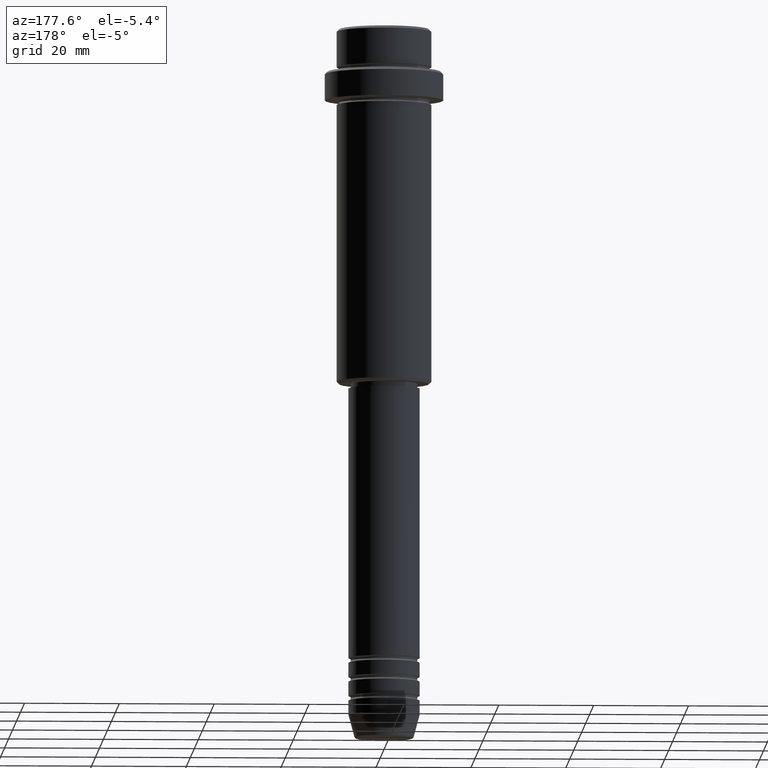
[diagram: clean part render]
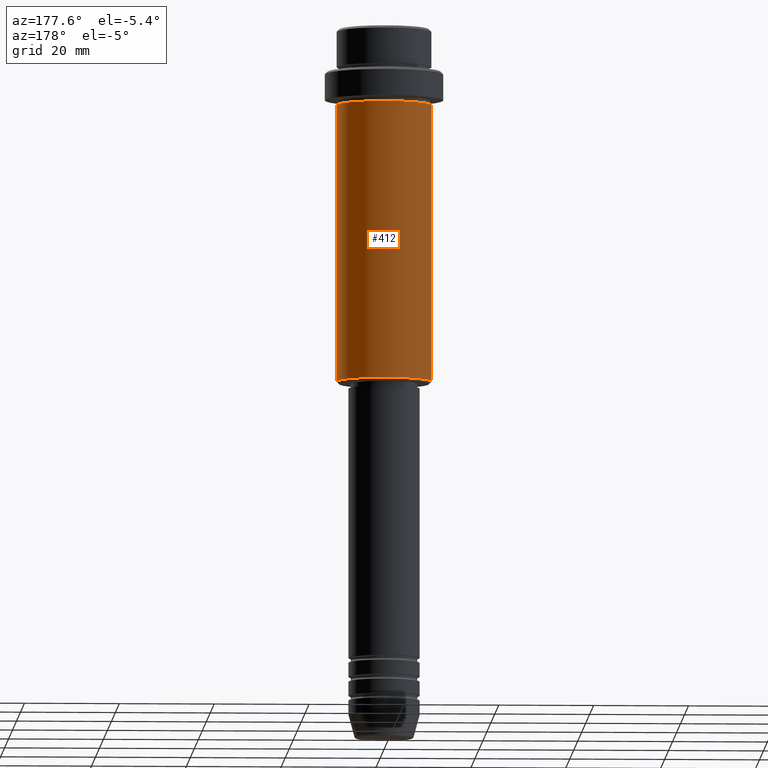
[diagram: same view with one face highlighted and labeled with its STEP entity id]
A machine part, auxiliary view. The second image highlights one B-rep face of the part: STEP entity #412.
In plain terms, the highlighted cylindrical surface (partial cylindrical patch) has radius 10 mm, axis along (-0, -0, 1).
Its self-contained STEP definition (entity closure, byte-faithful):
#4 = CYLINDRICAL_SURFACE ( 'NONE', #555, 10.00000000000000000 ) ;
#11 = LINE ( 'NONE', #1199, #1359 ) ;
#24 = CARTESIAN_POINT ( 'NONE',  ( 0.000000000000000000, 0.000000000000000000, -16.00000000000000000 ) ) ;
#50 = CIRCLE ( 'NONE', #739, 10.00000000000000000 ) ;
#93 = DIRECTION ( 'NONE',  ( -0.000000000000000000, -0.000000000000000000, 1.000000000000000000 ) ) ;
#102 = VECTOR ( 'NONE', #158, 1000.000000000000000 ) ;
#105 = EDGE_LOOP ( 'NONE', ( #845, #126, #644, #1139 ) ) ;
#123 = CIRCLE ( 'NONE', #171, 10.00000000000000000 ) ;
#126 = ORIENTED_EDGE ( 'NONE', *, *, #1086, .T. ) ;
#128 = EDGE_CURVE ( 'NONE', #386, #1214, #50, .T. ) ;
#158 = DIRECTION ( 'NONE',  ( -0.000000000000000000, -0.000000000000000000, 1.000000000000000000 ) ) ;
#171 = AXIS2_PLACEMENT_3D ( 'NONE', #525, #308, #313 ) ;
#211 = CARTESIAN_POINT ( 'NONE',  ( 10.00000000000000000, 0.000000000000000000, -74.50000000000001421 ) ) ;
#227 = CARTESIAN_POINT ( 'NONE',  ( 0.000000000000000000, 0.000000000000000000, 0.000000000000000000 ) ) ;
#267 = LINE ( 'NONE', #1141, #102 ) ;
#295 = CARTESIAN_POINT ( 'NONE',  ( -10.00000000000000000, 1.224646799147353256E-15, -16.00000000000000000 ) ) ;
#308 = DIRECTION ( 'NONE',  ( -0.000000000000000000, -0.000000000000000000, 1.000000000000000000 ) ) ;
#313 = DIRECTION ( 'NONE',  ( -1.000000000000000000, 0.000000000000000000, 0.000000000000000000 ) ) ;
#328 = EDGE_CURVE ( 'NONE', #1255, #386, #11, .T. ) ;
#346 = DIRECTION ( 'NONE',  ( -0.000000000000000000, -0.000000000000000000, 1.000000000000000000 ) ) ;
#386 = VERTEX_POINT ( 'NONE', #1216 ) ;
#412 = ADVANCED_FACE ( 'NONE', ( #646 ), #4, .T. ) ;
#509 = VERTEX_POINT ( 'NONE', #681 ) ;
#525 = CARTESIAN_POINT ( 'NONE',  ( 0.000000000000000000, 0.000000000000000000, -74.50000000000001421 ) ) ;
#555 = AXIS2_PLACEMENT_3D ( 'NONE', #227, #93, #657 ) ;
#644 = ORIENTED_EDGE ( 'NONE', *, *, #128, .F. ) ;
#646 = FACE_OUTER_BOUND ( 'NONE', #105, .T. ) ;
#657 = DIRECTION ( 'NONE',  ( 1.000000000000000000, 0.000000000000000000, 0.000000000000000000 ) ) ;
#681 = CARTESIAN_POINT ( 'NONE',  ( -10.00000000000000000, 1.224646799147353256E-15, -74.50000000000001421 ) ) ;
#739 = AXIS2_PLACEMENT_3D ( 'NONE', #24, #346, #1030 ) ;
#777 = EDGE_CURVE ( 'NONE', #1255, #509, #123, .T. ) ;
#845 = ORIENTED_EDGE ( 'NONE', *, *, #777, .T. ) ;
#1030 = DIRECTION ( 'NONE',  ( 1.000000000000000000, 0.000000000000000000, 0.000000000000000000 ) ) ;
#1086 = EDGE_CURVE ( 'NONE', #509, #1214, #267, .T. ) ;
#1139 = ORIENTED_EDGE ( 'NONE', *, *, #328, .F. ) ;
#1141 = CARTESIAN_POINT ( 'NONE',  ( -10.00000000000000000, 1.224646799147353256E-15, 0.000000000000000000 ) ) ;
#1199 = CARTESIAN_POINT ( 'NONE',  ( 10.00000000000000000, 0.000000000000000000, 0.000000000000000000 ) ) ;
#1214 = VERTEX_POINT ( 'NONE', #295 ) ;
#1216 = CARTESIAN_POINT ( 'NONE',  ( 10.00000000000000000, 0.000000000000000000, -16.00000000000000000 ) ) ;
#1255 = VERTEX_POINT ( 'NONE', #211 ) ;
#1318 = DIRECTION ( 'NONE',  ( -0.000000000000000000, -0.000000000000000000, 1.000000000000000000 ) ) ;
#1359 = VECTOR ( 'NONE', #1318, 1000.000000000000000 ) ;